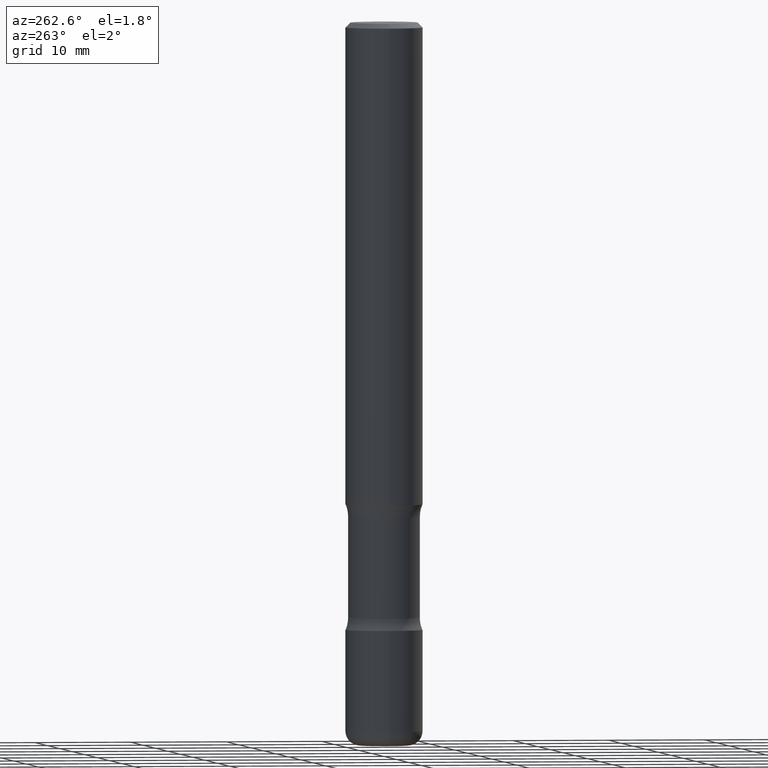
[diagram: clean part render]
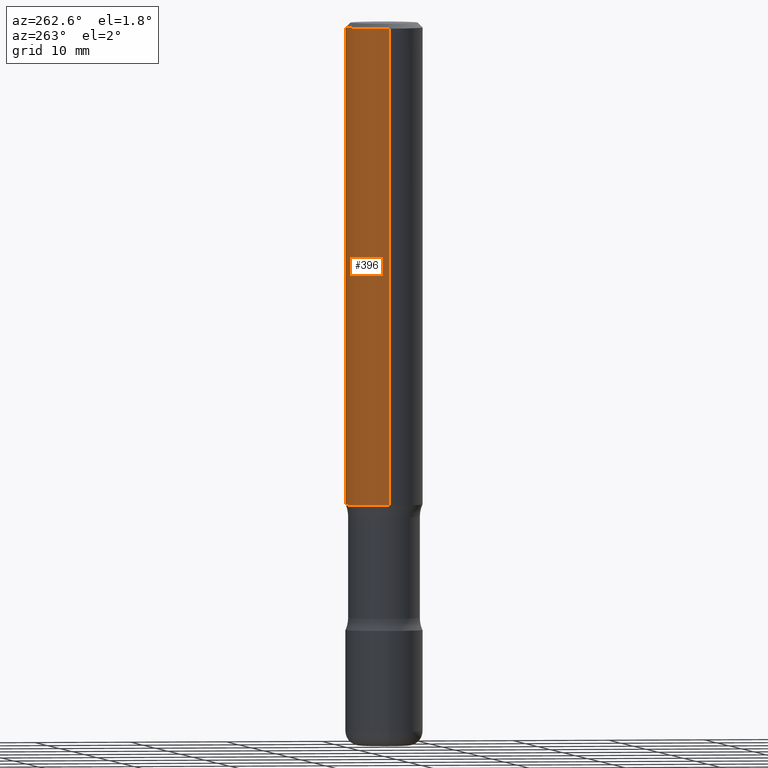
[diagram: same view with one face highlighted and labeled with its STEP entity id]
A machine part, auxiliary view. The second image highlights one B-rep face of the part: STEP entity #396.
In plain terms, the highlighted cylindrical surface (partial cylindrical patch) has radius 4.0005 mm, axis along (-0, 0, 1).
Its self-contained STEP definition (entity closure, byte-faithful):
#7 = ORIENTED_EDGE ( 'NONE', *, *, #556, .F. ) ;
#58 = CARTESIAN_POINT ( 'NONE',  ( 0.000000000000000000, 0.000000000000000000, 0.000000000000000000 ) ) ;
#64 = DIRECTION ( 'NONE',  ( 1.000000000000000000, -6.982962677686266711E-15, 0.000000000000000000 ) ) ;
#81 = ORIENTED_EDGE ( 'NONE', *, *, #519, .T. ) ;
#100 = VERTEX_POINT ( 'NONE', #458 ) ;
#103 = DIRECTION ( 'NONE',  ( -2.445468806185136597E-29, 3.491481338843145583E-15, 1.000000000000000000 ) ) ;
#106 = FACE_OUTER_BOUND ( 'NONE', #181, .T. ) ;
#126 = VERTEX_POINT ( 'NONE', #250 ) ;
#129 = DIRECTION ( 'NONE',  ( -2.445468806185136597E-29, 3.491481338843145583E-15, 1.000000000000000000 ) ) ;
#163 = LINE ( 'NONE', #330, #324 ) ;
#167 = DIRECTION ( 'NONE',  ( 1.000000000000000000, -6.982962677686267499E-15, 0.000000000000000000 ) ) ;
#181 = EDGE_LOOP ( 'NONE', ( #229, #81, #7, #533 ) ) ;
#200 = CYLINDRICAL_SURFACE ( 'NONE', #218, 0.1575000000000000289 ) ;
#218 = AXIS2_PLACEMENT_3D ( 'NONE', #58, #534, #527 ) ;
#229 = ORIENTED_EDGE ( 'NONE', *, *, #249, .T. ) ;
#231 = AXIS2_PLACEMENT_3D ( 'NONE', #515, #129, #167 ) ;
#235 = CARTESIAN_POINT ( 'NONE',  ( -0.1575000000000001676, -2.352300512322635166E-15, -1.968499999999999694 ) ) ;
#249 = EDGE_CURVE ( 'NONE', #100, #486, #290, .T. ) ;
#250 = CARTESIAN_POINT ( 'NONE',  ( -0.1574999999999999178, 1.029986994958723590E-15, -0.02000000000000000042 ) ) ;
#266 = EDGE_CURVE ( 'NONE', #100, #453, #163, .T. ) ;
#282 = VECTOR ( 'NONE', #482, 39.37007874015748143 ) ;
#287 = CARTESIAN_POINT ( 'NONE',  ( 0.1574999999999999178, -1.150358061425878486E-15, -0.02000000000000000042 ) ) ;
#290 = CIRCLE ( 'NONE', #231, 0.1575000000000001676 ) ;
#324 = VECTOR ( 'NONE', #467, 39.37007874015748143 ) ;
#330 = CARTESIAN_POINT ( 'NONE',  ( 0.1575000000000000289, -1.099816621735587283E-15, 7.679978421878599434E-30 ) ) ;
#335 = AXIS2_PLACEMENT_3D ( 'NONE', #485, #103, #64 ) ;
#396 = ADVANCED_FACE ( 'NONE', ( #106 ), #200, .T. ) ;
#431 = CIRCLE ( 'NONE', #335, 0.1574999999999999178 ) ;
#453 = VERTEX_POINT ( 'NONE', #287 ) ;
#458 = CARTESIAN_POINT ( 'NONE',  ( 0.1575000000000001676, -7.972797637248319976E-15, -1.968499999999999694 ) ) ;
#467 = DIRECTION ( 'NONE',  ( -2.445468806185136877E-29, 3.491481338843145188E-15, 1.000000000000000000 ) ) ;
#482 = DIRECTION ( 'NONE',  ( -2.445468806185136877E-29, 3.491481338843145188E-15, 1.000000000000000000 ) ) ;
#485 = CARTESIAN_POINT ( 'NONE',  ( 4.890937612370273159E-31, -6.982962677686291609E-17, -0.02000000000000000042 ) ) ;
#486 = VERTEX_POINT ( 'NONE', #235 ) ;
#515 = CARTESIAN_POINT ( 'NONE',  ( 4.813905344975440714E-29, -6.872981015512730918E-15, -1.968499999999999694 ) ) ;
#519 = EDGE_CURVE ( 'NONE', #486, #126, #531, .T. ) ;
#522 = CARTESIAN_POINT ( 'NONE',  ( -0.1575000000000000289, 1.119104808822157998E-15, -7.747322767151478386E-30 ) ) ;
#527 = DIRECTION ( 'NONE',  ( 1.000000000000000000, -6.982962677686267499E-15, 4.876176775795935232E-29 ) ) ;
#531 = LINE ( 'NONE', #522, #282 ) ;
#533 = ORIENTED_EDGE ( 'NONE', *, *, #266, .F. ) ;
#534 = DIRECTION ( 'NONE',  ( -2.445468806185136597E-29, 3.491481338843145583E-15, 1.000000000000000000 ) ) ;
#556 = EDGE_CURVE ( 'NONE', #453, #126, #431, .T. ) ;